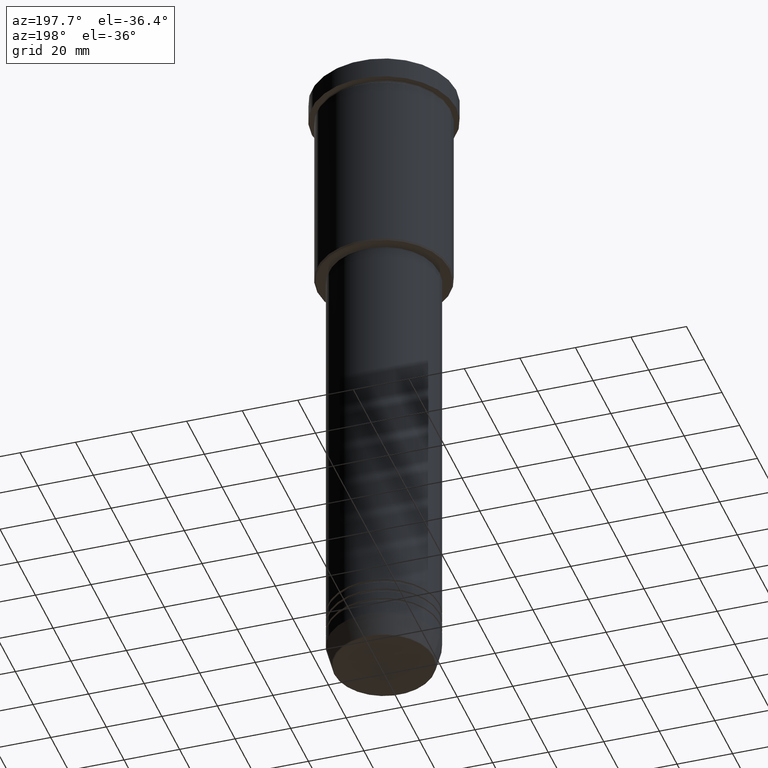
[diagram: clean part render]
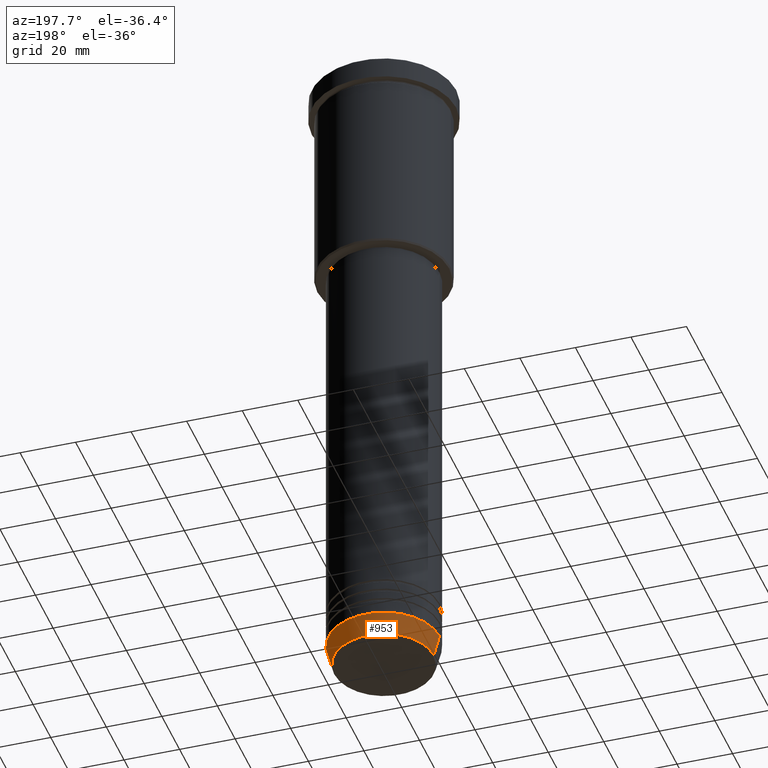
[diagram: same view with one face highlighted and labeled with its STEP entity id]
A machine part, auxiliary view. The second image highlights one B-rep face of the part: STEP entity #953.
In plain terms, the highlighted conical surface has half-angle 15 deg.
Its self-contained STEP definition (entity closure, byte-faithful):
#22 = DIRECTION ( 'NONE',  ( 1.000000000000000000, 0.000000000000000000, 0.000000000000000000 ) ) ;
#23 = CARTESIAN_POINT ( 'NONE',  ( 0.000000000000000000, 0.000000000000000000, -239.6294095225512706 ) ) ;
#45 = DIRECTION ( 'NONE',  ( -0.000000000000000000, -0.000000000000000000, 1.000000000000000000 ) ) ;
#48 = EDGE_LOOP ( 'NONE', ( #405, #363, #488, #875 ) ) ;
#63 = CARTESIAN_POINT ( 'NONE',  ( -20.00000000000000355, 2.449293598294706907E-15, -232.0000000000000000 ) ) ;
#111 = CARTESIAN_POINT ( 'NONE',  ( -17.95570587970607690, 2.324116685748021371E-15, -239.6294095225512706 ) ) ;
#231 = VERTEX_POINT ( 'NONE', #63 ) ;
#269 = DIRECTION ( 'NONE',  ( 0.2588190451025213501, 0.000000000000000000, 0.9659258262890680902 ) ) ;
#277 = CONICAL_SURFACE ( 'NONE', #508, 20.00000000000000355, 0.2617993877991500740 ) ;
#288 = EDGE_CURVE ( 'NONE', #411, #231, #432, .T. ) ;
#363 = ORIENTED_EDGE ( 'NONE', *, *, #667, .T. ) ;
#405 = ORIENTED_EDGE ( 'NONE', *, *, #554, .T. ) ;
#411 = VERTEX_POINT ( 'NONE', #1170 ) ;
#424 = EDGE_CURVE ( 'NONE', #929, #411, #536, .T. ) ;
#432 = CIRCLE ( 'NONE', #579, 20.00000000000000355 ) ;
#470 = VERTEX_POINT ( 'NONE', #111 ) ;
#488 = ORIENTED_EDGE ( 'NONE', *, *, #288, .F. ) ;
#505 = DIRECTION ( 'NONE',  ( 1.000000000000000000, 0.000000000000000000, 0.000000000000000000 ) ) ;
#508 = AXIS2_PLACEMENT_3D ( 'NONE', #922, #1038, #22 ) ;
#536 = LINE ( 'NONE', #1014, #638 ) ;
#545 = DIRECTION ( 'NONE',  ( 1.000000000000000000, 0.000000000000000000, 0.000000000000000000 ) ) ;
#554 = EDGE_CURVE ( 'NONE', #929, #470, #951, .T. ) ;
#579 = AXIS2_PLACEMENT_3D ( 'NONE', #966, #45, #505 ) ;
#597 = AXIS2_PLACEMENT_3D ( 'NONE', #23, #1109, #545 ) ;
#629 = CARTESIAN_POINT ( 'NONE',  ( 17.95570587970607690, 0.000000000000000000, -239.6294095225512706 ) ) ;
#638 = VECTOR ( 'NONE', #269, 1000.000000000000000 ) ;
#667 = EDGE_CURVE ( 'NONE', #470, #231, #687, .T. ) ;
#687 = LINE ( 'NONE', #1067, #1073 ) ;
#721 = FACE_OUTER_BOUND ( 'NONE', #48, .T. ) ;
#875 = ORIENTED_EDGE ( 'NONE', *, *, #424, .F. ) ;
#922 = CARTESIAN_POINT ( 'NONE',  ( 0.000000000000000000, 0.000000000000000000, -232.0000000000000000 ) ) ;
#929 = VERTEX_POINT ( 'NONE', #629 ) ;
#951 = CIRCLE ( 'NONE', #597, 17.95570587970607690 ) ;
#953 = ADVANCED_FACE ( 'NONE', ( #721 ), #277, .T. ) ;
#954 = DIRECTION ( 'NONE',  ( -0.2588190451025213501, 3.169619151431772337E-17, 0.9659258262890680902 ) ) ;
#966 = CARTESIAN_POINT ( 'NONE',  ( 0.000000000000000000, 0.000000000000000000, -232.0000000000000000 ) ) ;
#1014 = CARTESIAN_POINT ( 'NONE',  ( 20.00000000000000355, 0.000000000000000000, -232.0000000000000000 ) ) ;
#1038 = DIRECTION ( 'NONE',  ( -0.000000000000000000, -0.000000000000000000, 1.000000000000000000 ) ) ;
#1067 = CARTESIAN_POINT ( 'NONE',  ( -20.00000000000000355, 2.449293598294706907E-15, -232.0000000000000000 ) ) ;
#1073 = VECTOR ( 'NONE', #954, 1000.000000000000000 ) ;
#1109 = DIRECTION ( 'NONE',  ( -0.000000000000000000, -0.000000000000000000, 1.000000000000000000 ) ) ;
#1170 = CARTESIAN_POINT ( 'NONE',  ( 20.00000000000000355, 0.000000000000000000, -232.0000000000000000 ) ) ;